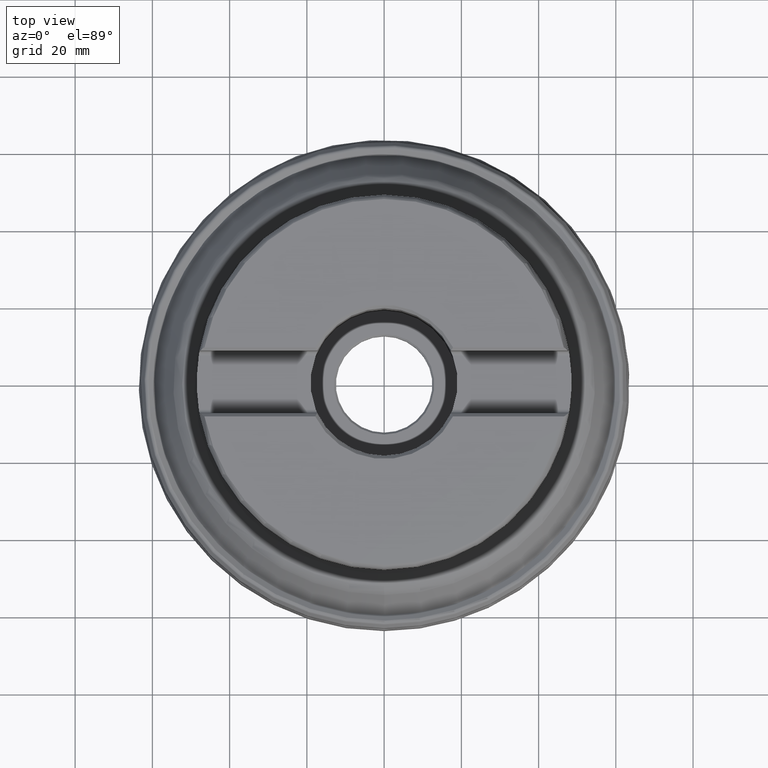
[diagram: clean part render]
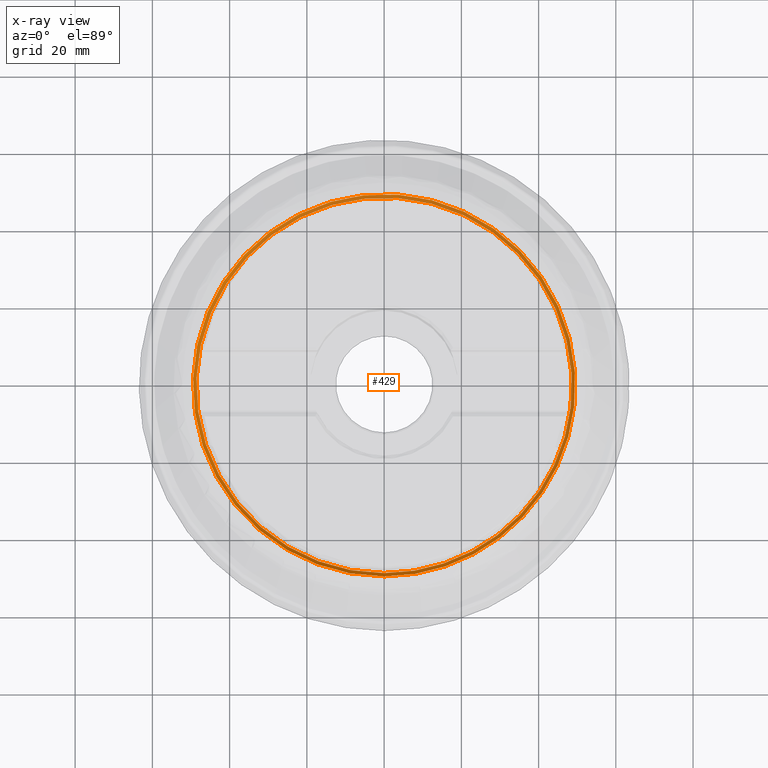
[diagram: x-ray — body ghosted, one internal face saturated and labeled with its STEP entity id]
A machine part, top view, then the same camera in x-ray: the body is ghosted and one INTERNAL B-rep face — a face not visible from any outside direction — is saturated and labeled: STEP entity #429.
In plain terms, the highlighted face is a SurfaceOfRevolution surface.
Its self-contained STEP definition (entity closure, byte-faithful):
#118=SURFACE_OF_REVOLUTION('',#221,#139);
#139=AXIS1_PLACEMENT('',#2470,#1596);
#221=LINE('',#2469,#248);
#248=VECTOR('',#1595,1.79261888880077);
#340=FACE_BOUND('',#591,.T.);
#341=FACE_BOUND('',#592,.T.);
#429=ADVANCED_FACE('',(#340,#341),#118,.F.);
#591=EDGE_LOOP('',(#833));
#592=EDGE_LOOP('',(#834));
#833=ORIENTED_EDGE('',*,*,#1064,.T.);
#834=ORIENTED_EDGE('',*,*,#1065,.F.);
#943=VERTEX_POINT('',#2460);
#944=VERTEX_POINT('',#2468);
#1064=EDGE_CURVE('',#943,#943,#1130,.T.);
#1065=EDGE_CURVE('',#944,#944,#1131,.T.);
#1130=CIRCLE('',#1320,49.5081642744738);
#1131=CIRCLE('',#1321,48.6000626668061);
#1320=AXIS2_PLACEMENT_3D('',#2459,#1590,#1591);
#1321=AXIS2_PLACEMENT_3D('',#2467,#1593,#1594);
#1590=DIRECTION('',(0.,1.17145536458252E-15,1.));
#1591=DIRECTION('',(0.,-1.,1.15629160454956E-15));
#1593=DIRECTION('',(0.,1.17145536458252E-15,1.));
#1594=DIRECTION('',(0.,-1.,1.17789713769924E-15));
#1595=DIRECTION('',(0.526428446233633,0.146146495890287,0.837564500641612));
#1596=DIRECTION('',(0.,1.17145536458252E-15,1.));
#2459=CARTESIAN_POINT('',(0.,1.063058058103E-14,9.07467830395607));
#2460=CARTESIAN_POINT('',(0.,-49.5081642744738,9.07467830395612));
#2467=CARTESIAN_POINT('',(0.,8.87171771457582E-15,7.57324434442918));
#2468=CARTESIAN_POINT('',(0.,-48.6000626668061,7.57324434442923));
#2469=CARTESIAN_POINT('',(48.2688100899024,-5.66463270851884,7.57324434442918));
#2470=CARTESIAN_POINT('',(0.,0.,0.));